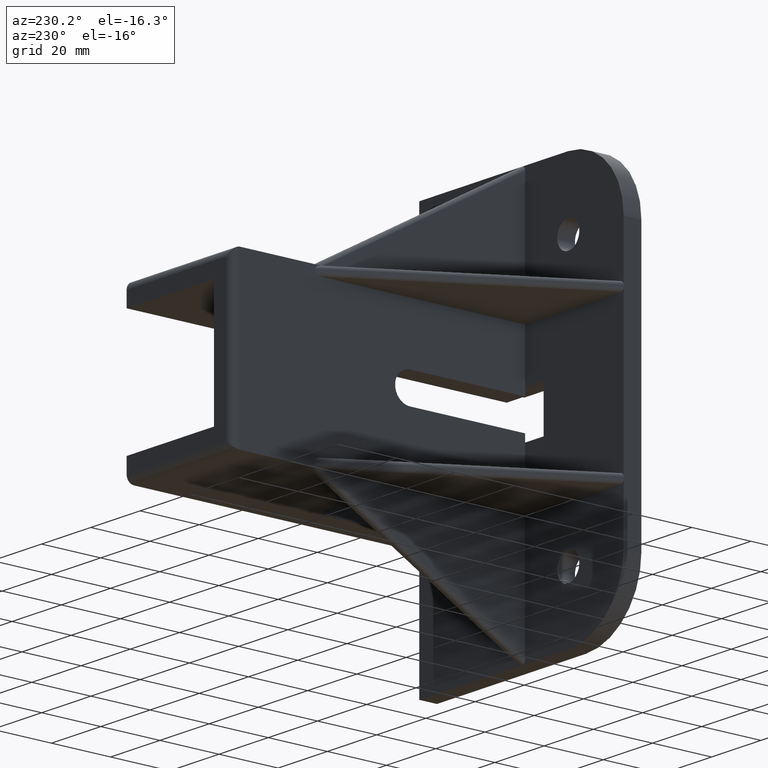
[diagram: clean part render]
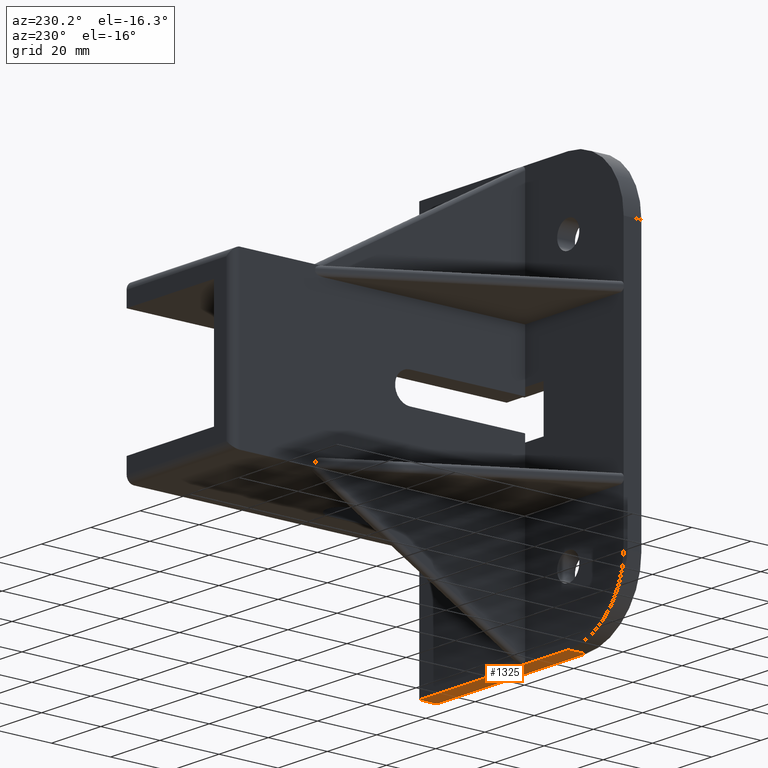
[diagram: same view with one face highlighted and labeled with its STEP entity id]
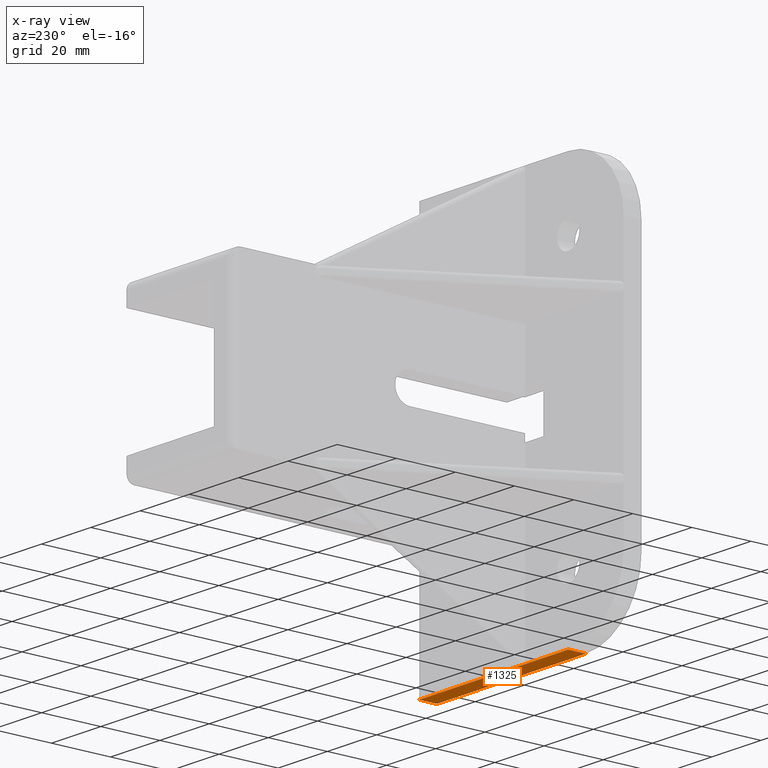
[diagram: x-ray of the same camera — body ghosted, the highlighted face saturated]
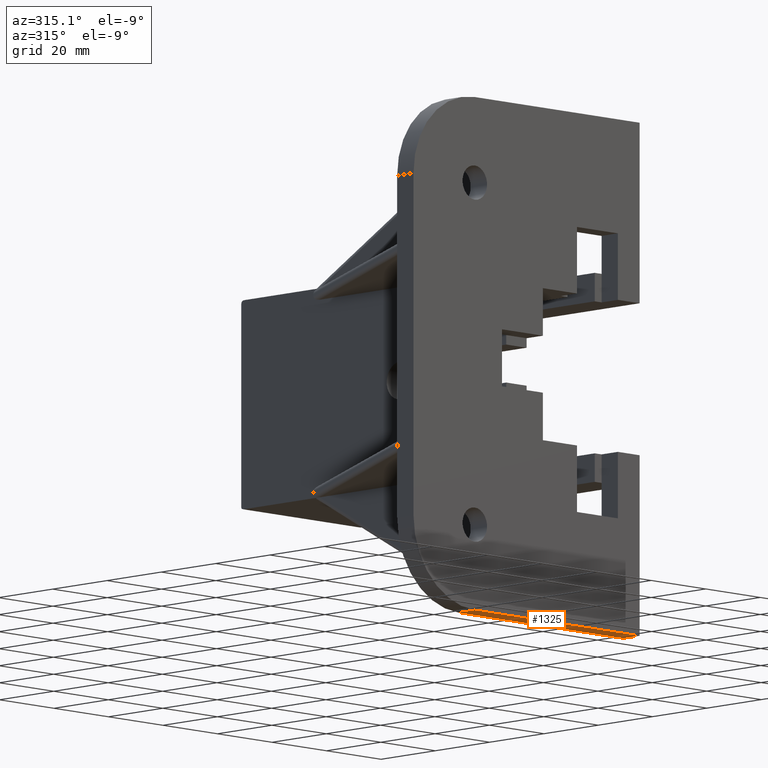
[diagram: same view with one face highlighted and labeled with its STEP entity id]
A machine part, auxiliary view. The second image highlights one B-rep face of the part: STEP entity #1325.
The next image is the same camera in x-ray: the body ghosted, the highlighted face saturated — about 0% of this face is hidden behind the body in this view.
A second angle (auxiliary view) of the same face is appended — the face is thin or edge-on in the first view.
In plain terms, the highlighted planar face has unit normal (0, 0, 1).
Its self-contained STEP definition (entity closure, byte-faithful):
#39=LINE('',#1869,#200);
#94=LINE('',#1996,#255);
#151=LINE('',#2128,#312);
#160=LINE('',#2144,#321);
#161=LINE('',#2145,#322);
#162=LINE('',#2146,#323);
#200=VECTOR('',#1499,60.5);
#255=VECTOR('',#1582,41.2);
#312=VECTOR('',#1691,18.7);
#321=VECTOR('',#1710,6.);
#322=VECTOR('',#1711,6.);
#323=VECTOR('',#1712,0.60000000000001);
#379=PLANE('',#1426);
#438=FACE_OUTER_BOUND('',#513,.T.);
#513=EDGE_LOOP('',(#1087,#1088,#1089,#1090,#1091,#1092));
#584=VERTEX_POINT('',#1866);
#585=VERTEX_POINT('',#1868);
#642=VERTEX_POINT('',#1993);
#643=VERTEX_POINT('',#1995);
#691=VERTEX_POINT('',#2125);
#692=VERTEX_POINT('',#2127);
#708=EDGE_CURVE('',#585,#584,#39,.T.);
#772=EDGE_CURVE('',#642,#643,#94,.T.);
#842=EDGE_CURVE('',#691,#692,#151,.T.);
#853=EDGE_CURVE('',#585,#642,#160,.T.);
#854=EDGE_CURVE('',#584,#692,#161,.T.);
#855=EDGE_CURVE('',#643,#691,#162,.T.);
#1087=ORIENTED_EDGE('',*,*,#772,.F.);
#1088=ORIENTED_EDGE('',*,*,#853,.F.);
#1089=ORIENTED_EDGE('',*,*,#708,.T.);
#1090=ORIENTED_EDGE('',*,*,#854,.T.);
#1091=ORIENTED_EDGE('',*,*,#842,.F.);
#1092=ORIENTED_EDGE('',*,*,#855,.F.);
#1325=ADVANCED_FACE('',(#438),#379,.F.);
#1426=AXIS2_PLACEMENT_3D('',#2143,#1708,#1709);
#1499=DIRECTION('',(-1.,0.,0.));
#1582=DIRECTION('',(-1.,0.,0.));
#1691=DIRECTION('',(-1.,0.,0.));
#1708=DIRECTION('center_axis',(0.,0.,1.));
#1709=DIRECTION('ref_axis',(1.,0.,0.));
#1710=DIRECTION('',(0.,1.,0.));
#1711=DIRECTION('',(0.,1.,0.));
#1712=DIRECTION('',(-1.,0.,0.));
#1866=CARTESIAN_POINT('',(-45.,0.,-67.5));
#1868=CARTESIAN_POINT('',(15.5,0.,-67.5));
#1869=CARTESIAN_POINT('',(-67.5,0.,-67.5));
#1993=CARTESIAN_POINT('',(15.5,6.,-67.5));
#1995=CARTESIAN_POINT('',(-25.7,6.,-67.5));
#1996=CARTESIAN_POINT('',(-67.5,6.,-67.5));
#2125=CARTESIAN_POINT('',(-26.3,6.,-67.5));
#2127=CARTESIAN_POINT('',(-45.,6.,-67.5));
#2128=CARTESIAN_POINT('',(-67.5,6.,-67.5));
#2143=CARTESIAN_POINT('Origin',(-67.5,6.,-67.5));
#2144=CARTESIAN_POINT('',(15.5,0.,-67.5));
#2145=CARTESIAN_POINT('',(-45.,6.,-67.5));
#2146=CARTESIAN_POINT('',(-67.5,6.,-67.5));